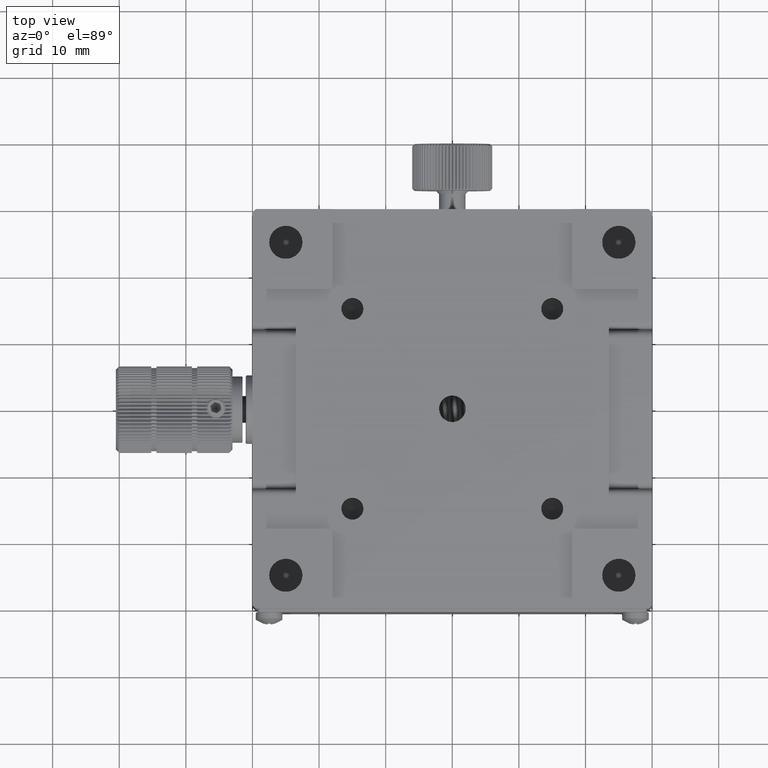
[diagram: clean part render]
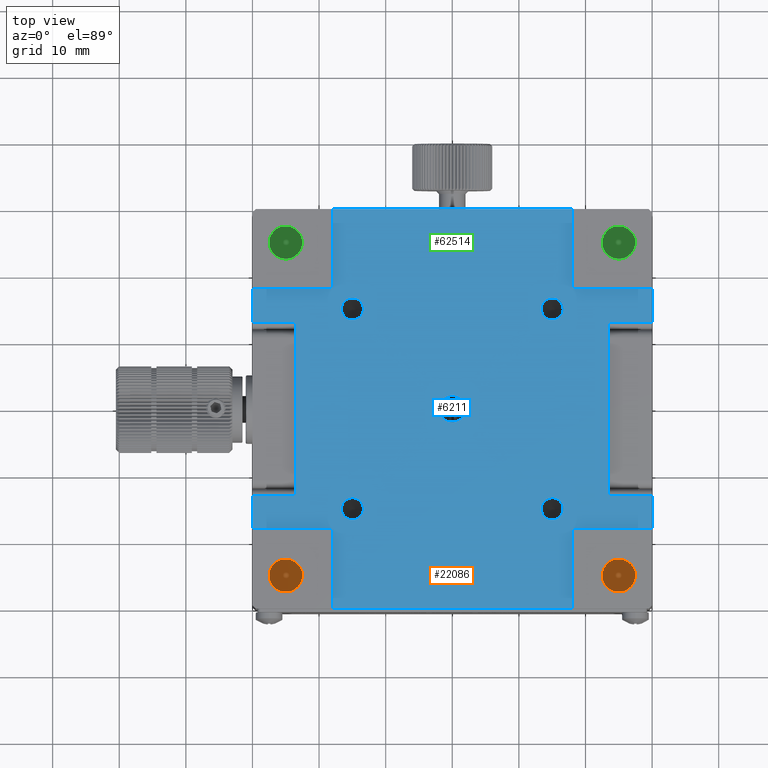
[diagram: same view with three faces highlighted in distinct colors, each labeled with its STEP entity id]
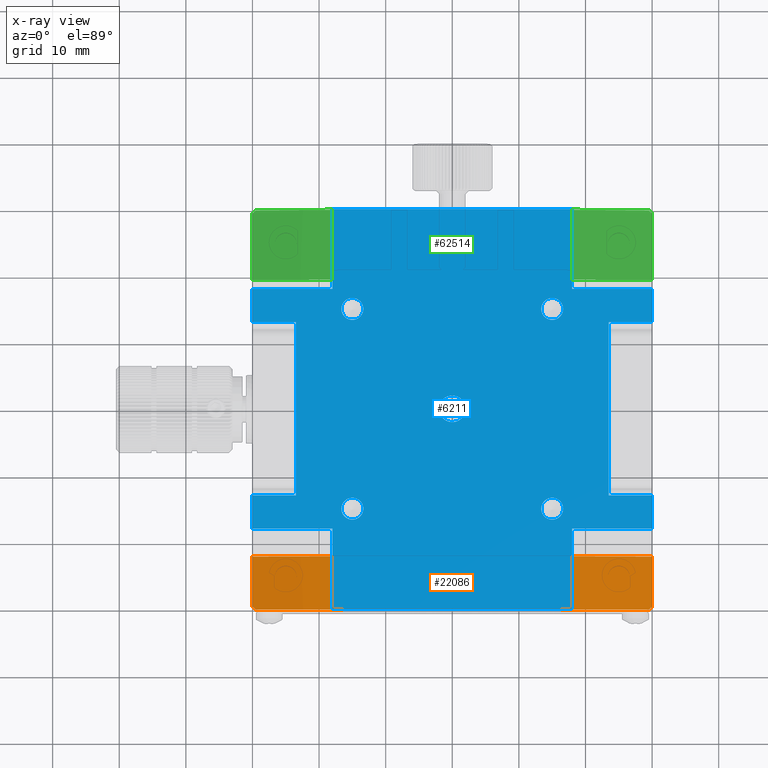
[diagram: x-ray of the same camera — body ghosted, the three highlighted faces saturated]
A machine part, top view with three faces highlighted in distinct colors.
The next image is the same camera in x-ray (body ghosted, the three faces saturated) — at least one of them is partly hidden behind the body in this view.
Their STEP definitions:

[orange] entity #22086 — the highlighted cylindrical surface (partial cylindrical patch) has radius 75 mm, axis along (0, 1, 0).
#2029 = AXIS2_PLACEMENT_3D ( 'NONE', #71826, #43961, #20575 ) ;
#2817 = LINE ( 'NONE', #20597, #67793 ) ;
#4821 = DIRECTION ( 'NONE',  ( 0.000000000000000000, 1.000000000000000000, 0.000000000000000000 ) ) ;
#5381 = CARTESIAN_POINT ( 'NONE',  ( -29.83359522204707304, -29.66640477795295538, 68.81126042875996518 ) ) ;
#7452 = CARTESIAN_POINT ( 'NONE',  ( 29.66692782282690288, -29.83307217717302606, 68.88328069439461387 ) ) ;
#8828 = VERTEX_POINT ( 'NONE', #33727 ) ;
#9821 = CYLINDRICAL_SURFACE ( 'NONE', #28405, 75.00000000484634199 ) ;
#10222 = DIRECTION ( 'NONE',  ( 0.000000000000000000, 1.000000000000000000, 0.000000000000000000 ) ) ;
#11336 = EDGE_CURVE ( 'NONE', #63977, #27926, #53527, .T. ) ;
#14917 = DIRECTION ( 'NONE',  ( -0.000000000000000000, -1.000000000000000000, -0.000000000000000000 ) ) ;
#15840 = ORIENTED_EDGE ( 'NONE', *, *, #33836, .F. ) ;
#15856 = DIRECTION ( 'NONE',  ( 0.000000000000000000, 0.000000000000000000, 1.000000000000000000 ) ) ;
#16231 = CARTESIAN_POINT ( 'NONE',  ( -30.00000000000004974, -21.99999999999997868, 68.73863542962538986 ) ) ;
#18786 = CARTESIAN_POINT ( 'NONE',  ( -30.00000000000004974, -29.49999999999997868, 68.73863542962538986 ) ) ;
#20575 = DIRECTION ( 'NONE',  ( 0.000000000000000000, 0.000000000000000000, 1.000000000000000000 ) ) ;
#20597 = CARTESIAN_POINT ( 'NONE',  ( 29.99999999999995737, -29.99999999999998224, 68.73863542962540407 ) ) ;
#21523 = EDGE_CURVE ( 'NONE', #27926, #32047, #33172, .T. ) ;
#22086 = ADVANCED_FACE ( 'NONE', ( #44179 ), #9821, .T. ) ;
#22840 = CARTESIAN_POINT ( 'NONE',  ( -29.50000000000004619, -29.99999999999997513, 68.95469527687689038 ) ) ;
#27926 = VERTEX_POINT ( 'NONE', #18786 ) ;
#28405 = AXIS2_PLACEMENT_3D ( 'NONE', #55853, #10222, #15856 ) ;
#28594 = CARTESIAN_POINT ( 'NONE',  ( 29.49999999999996092, -29.99999999999997158, 68.95469527687694722 ) ) ;
#32047 = VERTEX_POINT ( 'NONE', #16231 ) ;
#33172 = LINE ( 'NONE', #44114, #35529 ) ;
#33353 = CARTESIAN_POINT ( 'NONE',  ( -29.50000000000004619, -29.99999999999997513, 68.95469527687689038 ) ) ;
#33622 = DIRECTION ( 'NONE',  ( 0.000000000000000000, 0.000000000000000000, 1.000000000000000000 ) ) ;
#33708 = CARTESIAN_POINT ( 'NONE',  ( -30.00000000000004974, -29.49999999999997868, 68.73863542962538986 ) ) ;
#33727 = CARTESIAN_POINT ( 'NONE',  ( 29.99999999999995737, -29.49999999999997513, 68.73863542962540407 ) ) ;
#33836 = EDGE_CURVE ( 'NONE', #51140, #8828, #2817, .T. ) ;
#35529 = VECTOR ( 'NONE', #4821, 1000.000000000000000 ) ;
#35870 = AXIS2_PLACEMENT_3D ( 'NONE', #39300, #68638, #33622 ) ;
#37122 = ORIENTED_EDGE ( 'NONE', *, *, #60890, .T. ) ;
#39300 = CARTESIAN_POINT ( 'NONE',  ( -5.488900341503622181E-30, -21.99999999999997868, 6.938893903907229955E-15 ) ) ;
#39526 = EDGE_CURVE ( 'NONE', #8828, #54422, #64365, .T. ) ;
#43961 = DIRECTION ( 'NONE',  ( 0.000000000000000000, 1.000000000000000000, 0.000000000000000000 ) ) ;
#44114 = CARTESIAN_POINT ( 'NONE',  ( -30.00000000000004974, -29.99999999999998224, 68.73863542962540407 ) ) ;
#44179 = FACE_OUTER_BOUND ( 'NONE', #47975, .T. ) ;
#45409 = CARTESIAN_POINT ( 'NONE',  ( -29.66692782282697749, -29.83307217717305093, 68.88328069439458545 ) ) ;
#47975 = EDGE_LOOP ( 'NONE', ( #64009, #57211, #59925, #49086, #15840, #37122 ) ) ;
#49086 = ORIENTED_EDGE ( 'NONE', *, *, #39526, .F. ) ;
#51140 = VERTEX_POINT ( 'NONE', #72862 ) ;
#52621 = CIRCLE ( 'NONE', #2029, 75.00000000484634199 ) ;
#52743 = CIRCLE ( 'NONE', #35870, 75.00000000484634199 ) ;
#53504 = CARTESIAN_POINT ( 'NONE',  ( 29.49999999999996092, -29.99999999999997158, 68.95469527687694722 ) ) ;
#53527 =( BOUNDED_CURVE ( )  B_SPLINE_CURVE ( 3, ( #33353, #45409, #5381, #33708 ),
 .UNSPECIFIED., .F., .F. ) 
 B_SPLINE_CURVE_WITH_KNOTS ( ( 4, 4 ),
 ( 5.116643342470983846, 5.123905826423976073 ),
 .UNSPECIFIED. ) 
 CURVE ( )  GEOMETRIC_REPRESENTATION_ITEM ( )  RATIONAL_B_SPLINE_CURVE ( ( 1.000000000000000000, 0.9999956046987323877, 0.9999956046987323877, 1.000000000000000000 ) ) 
 REPRESENTATION_ITEM ( '' )  );
#54422 = VERTEX_POINT ( 'NONE', #28594 ) ;
#55853 = CARTESIAN_POINT ( 'NONE',  ( -5.488900341503622181E-30, 30.00000000000002842, 6.938893903907229955E-15 ) ) ;
#57211 = ORIENTED_EDGE ( 'NONE', *, *, #11336, .F. ) ;
#59522 = CARTESIAN_POINT ( 'NONE',  ( 29.99999999999995737, -29.49999999999997513, 68.73863542962540407 ) ) ;
#59925 = ORIENTED_EDGE ( 'NONE', *, *, #70643, .T. ) ;
#60890 = EDGE_CURVE ( 'NONE', #51140, #32047, #52743, .T. ) ;
#63977 = VERTEX_POINT ( 'NONE', #22840 ) ;
#64009 = ORIENTED_EDGE ( 'NONE', *, *, #21523, .F. ) ;
#64365 =( BOUNDED_CURVE ( )  B_SPLINE_CURVE ( 3, ( #59522, #66667, #7452, #53504 ),
 .UNSPECIFIED., .F., .F. ) 
 B_SPLINE_CURVE_WITH_KNOTS ( ( 4, 4 ),
 ( 1.159279480755610159, 1.166541964708602608 ),
 .UNSPECIFIED. ) 
 CURVE ( )  GEOMETRIC_REPRESENTATION_ITEM ( )  RATIONAL_B_SPLINE_CURVE ( ( 1.000000000000000000, 0.9999956046987323877, 0.9999956046987323877, 1.000000000000000000 ) ) 
 REPRESENTATION_ITEM ( '' )  );
#66667 = CARTESIAN_POINT ( 'NONE',  ( 29.83359522204700198, -29.66640477795292696, 68.81126042875999360 ) ) ;
#67793 = VECTOR ( 'NONE', #14917, 1000.000000000000000 ) ;
#68638 = DIRECTION ( 'NONE',  ( -0.000000000000000000, -1.000000000000000000, -0.000000000000000000 ) ) ;
#70643 = EDGE_CURVE ( 'NONE', #63977, #54422, #52621, .T. ) ;
#71826 = CARTESIAN_POINT ( 'NONE',  ( -5.488900341503622181E-30, -29.99999999999997158, 6.938893903907229955E-15 ) ) ;
#72862 = CARTESIAN_POINT ( 'NONE',  ( 29.99999999999995737, -21.99999999999997868, 68.73863542962540407 ) ) ;

[blue] entity #6211 — the highlighted planar face has unit normal (0, 0, 1).
#866 = ORIENTED_EDGE ( 'NONE', *, *, #70541, .T. ) ;
#1095 = EDGE_LOOP ( 'NONE', ( #1145 ) ) ;
#1145 = ORIENTED_EDGE ( 'NONE', *, *, #66589, .T. ) ;
#1581 = VERTEX_POINT ( 'NONE', #64200 ) ;
#1616 = EDGE_LOOP ( 'NONE', ( #27256, #74280, #46910, #68637, #32362, #70071, #7769, #1731, #2458, #55581, #71293, #10503, #42751, #47541, #49913, #866, #54258, #5864, #8316, #52564 ) ) ;
#1641 = CIRCLE ( 'NONE', #67884, 1.999999999999993117 ) ;
#1731 = ORIENTED_EDGE ( 'NONE', *, *, #42708, .T. ) ;
#2458 = ORIENTED_EDGE ( 'NONE', *, *, #58466, .T. ) ;
#2560 = AXIS2_PLACEMENT_3D ( 'NONE', #30005, #31483, #48099 ) ;
#2795 = AXIS2_PLACEMENT_3D ( 'NONE', #13716, #47666, #31059 ) ;
#3611 = DIRECTION ( 'NONE',  ( -0.000000000000000000, -0.000000000000000000, -1.000000000000000000 ) ) ;
#3671 = DIRECTION ( 'NONE',  ( -1.000000000000000000, -0.000000000000000000, 0.000000000000000000 ) ) ;
#3827 = EDGE_CURVE ( 'NONE', #73255, #26808, #51536, .T. ) ;
#4319 = LINE ( 'NONE', #67305, #59095 ) ;
#4731 = ORIENTED_EDGE ( 'NONE', *, *, #14750, .T. ) ;
#5135 = VERTEX_POINT ( 'NONE', #62820 ) ;
#5148 = VECTOR ( 'NONE', #42277, 1000.000000000000000 ) ;
#5864 = ORIENTED_EDGE ( 'NONE', *, *, #7100, .T. ) ;
#6211 = ADVANCED_FACE ( 'NONE', ( #28574, #74497, #22904, #70315, #47737, #65414 ), #52996, .T. ) ;
#6821 = CARTESIAN_POINT ( 'NONE',  ( 3.469446951953614189E-15, 18.00000000000000355, 79.69999999999998863 ) ) ;
#7100 = EDGE_CURVE ( 'NONE', #27781, #73255, #47810, .T. ) ;
#7405 = DIRECTION ( 'NONE',  ( 1.000000000000000000, 0.000000000000000000, -0.000000000000000000 ) ) ;
#7564 = DIRECTION ( 'NONE',  ( -0.000000000000000000, -0.000000000000000000, -1.000000000000000000 ) ) ;
#7769 = ORIENTED_EDGE ( 'NONE', *, *, #53663, .T. ) ;
#7961 = DIRECTION ( 'NONE',  ( -0.000000000000000000, -0.000000000000000000, -1.000000000000000000 ) ) ;
#8316 = ORIENTED_EDGE ( 'NONE', *, *, #3827, .T. ) ;
#8341 = CARTESIAN_POINT ( 'NONE',  ( 3.469446951953614189E-15, 30.00000000000000000, 79.69999999999998863 ) ) ;
#8748 = VECTOR ( 'NONE', #29488, 1000.000000000000000 ) ;
#9318 = CARTESIAN_POINT ( 'NONE',  ( 15.00000000000000711, -15.00000000000000000, 79.69999999999998863 ) ) ;
#9507 = EDGE_LOOP ( 'NONE', ( #67691 ) ) ;
#9615 = CARTESIAN_POINT ( 'NONE',  ( 18.00000000000001066, 0.000000000000000000, 79.69999999999998863 ) ) ;
#10287 = CIRCLE ( 'NONE', #30729, 1.649999999999991696 ) ;
#10498 = VECTOR ( 'NONE', #60509, 1000.000000000000000 ) ;
#10503 = ORIENTED_EDGE ( 'NONE', *, *, #26495, .T. ) ;
#10536 = LINE ( 'NONE', #27163, #66834 ) ;
#11178 = DIRECTION ( 'NONE',  ( 0.000000000000000000, -1.000000000000000000, -0.000000000000000000 ) ) ;
#11726 = LINE ( 'NONE', #46768, #12583 ) ;
#11990 = LINE ( 'NONE', #46679, #45901 ) ;
#12583 = VECTOR ( 'NONE', #45667, 1000.000000000000000 ) ;
#13510 = VECTOR ( 'NONE', #31182, 1000.000000000000000 ) ;
#13716 = CARTESIAN_POINT ( 'NONE',  ( -15.00000000000000000, 15.00000000000000000, 79.69999999999998863 ) ) ;
#13848 = LINE ( 'NONE', #64739, #13510 ) ;
#14066 = CARTESIAN_POINT ( 'NONE',  ( -23.50000000000000000, 0.000000000000000000, 79.69999999999998863 ) ) ;
#14165 = LINE ( 'NONE', #37188, #10498 ) ;
#14750 = EDGE_CURVE ( 'NONE', #5135, #5135, #21783, .T. ) ;
#15232 = EDGE_CURVE ( 'NONE', #22103, #65267, #13848, .T. ) ;
#16038 = DIRECTION ( 'NONE',  ( -0.000000000000000000, 1.000000000000000000, 0.000000000000000000 ) ) ;
#16438 = LINE ( 'NONE', #39456, #22462 ) ;
#17426 = LINE ( 'NONE', #17792, #8748 ) ;
#17792 = CARTESIAN_POINT ( 'NONE',  ( -30.00000000000001421, 0.000000000000000000, 79.69999999999998863 ) ) ;
#18693 = CARTESIAN_POINT ( 'NONE',  ( 18.00000000000001066, 18.00000000000000355, 79.69999999999998863 ) ) ;
#19593 = VECTOR ( 'NONE', #7405, 1000.000000000000000 ) ;
#19706 = AXIS2_PLACEMENT_3D ( 'NONE', #59247, #7564, #30612 ) ;
#20039 = CARTESIAN_POINT ( 'NONE',  ( 18.00000000000001066, 30.00000000000000000, 79.69999999999998863 ) ) ;
#20697 = VERTEX_POINT ( 'NONE', #60373 ) ;
#20934 = EDGE_CURVE ( 'NONE', #20697, #22103, #11726, .T. ) ;
#21557 = EDGE_CURVE ( 'NONE', #30560, #23336, #10536, .T. ) ;
#21783 = CIRCLE ( 'NONE', #53072, 1.649999999999995248 ) ;
#22103 = VERTEX_POINT ( 'NONE', #49820 ) ;
#22286 = CARTESIAN_POINT ( 'NONE',  ( 30.00000000000001066, 18.00000000000000355, 79.69999999999998863 ) ) ;
#22462 = VECTOR ( 'NONE', #50737, 1000.000000000000000 ) ;
#22904 = FACE_BOUND ( 'NONE', #1095, .T. ) ;
#22922 = EDGE_LOOP ( 'NONE', ( #4731 ) ) ;
#23110 = VERTEX_POINT ( 'NONE', #46197 ) ;
#23333 = DIRECTION ( 'NONE',  ( 1.000000000000000000, 0.000000000000000000, -0.000000000000000000 ) ) ;
#23336 = VERTEX_POINT ( 'NONE', #38989 ) ;
#24993 = DIRECTION ( 'NONE',  ( 1.000000000000000000, 0.000000000000000000, 0.000000000000000000 ) ) ;
#25208 = LINE ( 'NONE', #49312, #51477 ) ;
#26495 = EDGE_CURVE ( 'NONE', #54878, #35548, #30611, .T. ) ;
#26808 = VERTEX_POINT ( 'NONE', #57604 ) ;
#27163 = CARTESIAN_POINT ( 'NONE',  ( 18.00000000000001421, 0.000000000000000000, 79.69999999999998863 ) ) ;
#27256 = ORIENTED_EDGE ( 'NONE', *, *, #21557, .T. ) ;
#27781 = VERTEX_POINT ( 'NONE', #45585 ) ;
#28295 = CARTESIAN_POINT ( 'NONE',  ( 23.50000000000001421, 13.00000000000000355, 79.69999999999998863 ) ) ;
#28574 = FACE_OUTER_BOUND ( 'NONE', #1616, .T. ) ;
#29134 = ORIENTED_EDGE ( 'NONE', *, *, #36302, .T. ) ;
#29488 = DIRECTION ( 'NONE',  ( 0.000000000000000000, -1.000000000000000000, -0.000000000000000000 ) ) ;
#30005 = CARTESIAN_POINT ( 'NONE',  ( 3.469446951953614189E-15, 0.000000000000000000, 79.69999999999998863 ) ) ;
#30095 = VECTOR ( 'NONE', #53800, 1000.000000000000000 ) ;
#30560 = VERTEX_POINT ( 'NONE', #34539 ) ;
#30611 = LINE ( 'NONE', #6821, #33168 ) ;
#30612 = DIRECTION ( 'NONE',  ( 1.000000000000000000, 0.000000000000000000, 0.000000000000000000 ) ) ;
#30729 = AXIS2_PLACEMENT_3D ( 'NONE', #9318, #3611, #44754 ) ;
#30784 = DIRECTION ( 'NONE',  ( -0.000000000000000000, -0.000000000000000000, -1.000000000000000000 ) ) ;
#31059 = DIRECTION ( 'NONE',  ( 1.000000000000000000, 0.000000000000000000, 0.000000000000000000 ) ) ;
#31182 = DIRECTION ( 'NONE',  ( -0.000000000000000000, 1.000000000000000000, 0.000000000000000000 ) ) ;
#31184 = VERTEX_POINT ( 'NONE', #46635 ) ;
#31368 = DIRECTION ( 'NONE',  ( -1.000000000000000000, -0.000000000000000000, 0.000000000000000000 ) ) ;
#31483 = DIRECTION ( 'NONE',  ( 0.000000000000000000, 0.000000000000000000, 1.000000000000000000 ) ) ;
#31541 = EDGE_CURVE ( 'NONE', #32855, #20697, #49985, .T. ) ;
#31556 = CARTESIAN_POINT ( 'NONE',  ( 3.469446951953614189E-15, -18.00000000000001421, 79.69999999999998863 ) ) ;
#32256 = VERTEX_POINT ( 'NONE', #55265 ) ;
#32362 = ORIENTED_EDGE ( 'NONE', *, *, #15232, .T. ) ;
#32855 = VERTEX_POINT ( 'NONE', #64624 ) ;
#33168 = VECTOR ( 'NONE', #53610, 1000.000000000000000 ) ;
#33536 = DIRECTION ( 'NONE',  ( -0.000000000000000000, 1.000000000000000000, 0.000000000000000000 ) ) ;
#33654 = LINE ( 'NONE', #57027, #37716 ) ;
#34181 = EDGE_CURVE ( 'NONE', #65792, #65792, #64217, .T. ) ;
#34539 = CARTESIAN_POINT ( 'NONE',  ( 18.00000000000001421, -30.00000000000000000, 79.69999999999998863 ) ) ;
#35548 = VERTEX_POINT ( 'NONE', #67972 ) ;
#35633 = EDGE_CURVE ( 'NONE', #37927, #37927, #52192, .T. ) ;
#36302 = EDGE_CURVE ( 'NONE', #32256, #32256, #1641, .T. ) ;
#36469 = LINE ( 'NONE', #54158, #30095 ) ;
#37091 = DIRECTION ( 'NONE',  ( 0.000000000000000000, -1.000000000000000000, -0.000000000000000000 ) ) ;
#37188 = CARTESIAN_POINT ( 'NONE',  ( 3.469446951953614189E-15, -12.99999999999999467, 79.69999999999998863 ) ) ;
#37716 = VECTOR ( 'NONE', #57394, 1000.000000000000000 ) ;
#37927 = VERTEX_POINT ( 'NONE', #54498 ) ;
#38017 = DIRECTION ( 'NONE',  ( 0.000000000000000000, -1.000000000000000000, -0.000000000000000000 ) ) ;
#38798 = ORIENTED_EDGE ( 'NONE', *, *, #34181, .T. ) ;
#38989 = CARTESIAN_POINT ( 'NONE',  ( 18.00000000000001421, -18.00000000000000355, 79.69999999999998863 ) ) ;
#39456 = CARTESIAN_POINT ( 'NONE',  ( -30.00000000000001421, 0.000000000000000000, 79.69999999999998863 ) ) ;
#39591 = CARTESIAN_POINT ( 'NONE',  ( -18.00000000000000711, -18.00000000000001066, 79.69999999999998863 ) ) ;
#39630 = VERTEX_POINT ( 'NONE', #56855 ) ;
#39999 = EDGE_CURVE ( 'NONE', #35548, #68423, #16438, .T. ) ;
#42277 = DIRECTION ( 'NONE',  ( 1.000000000000000000, 0.000000000000000000, -0.000000000000000000 ) ) ;
#42587 = LINE ( 'NONE', #48995, #45859 ) ;
#42708 = EDGE_CURVE ( 'NONE', #55311, #66809, #42587, .T. ) ;
#42716 = LINE ( 'NONE', #8341, #58757 ) ;
#42751 = ORIENTED_EDGE ( 'NONE', *, *, #39999, .T. ) ;
#43285 = EDGE_CURVE ( 'NONE', #26808, #30560, #11990, .T. ) ;
#44185 = VECTOR ( 'NONE', #11178, 1000.000000000000000 ) ;
#44683 = VECTOR ( 'NONE', #16038, 1000.000000000000000 ) ;
#44695 = LINE ( 'NONE', #9615, #69309 ) ;
#44754 = DIRECTION ( 'NONE',  ( 1.000000000000000000, 0.000000000000000000, 0.000000000000000000 ) ) ;
#45079 = VERTEX_POINT ( 'NONE', #58121 ) ;
#45082 = DIRECTION ( 'NONE',  ( -0.000000000000000000, 1.000000000000000000, 0.000000000000000000 ) ) ;
#45585 = CARTESIAN_POINT ( 'NONE',  ( -30.00000000000001066, -18.00000000000001421, 79.69999999999998863 ) ) ;
#45667 = DIRECTION ( 'NONE',  ( -1.000000000000000000, -0.000000000000000000, 0.000000000000000000 ) ) ;
#45859 = VECTOR ( 'NONE', #3671, 1000.000000000000000 ) ;
#45901 = VECTOR ( 'NONE', #23333, 1000.000000000000000 ) ;
#46197 = CARTESIAN_POINT ( 'NONE',  ( 30.00000000000001421, 13.00000000000000355, 79.69999999999998863 ) ) ;
#46635 = CARTESIAN_POINT ( 'NONE',  ( -23.50000000000000000, 12.99999999999999822, 79.69999999999998863 ) ) ;
#46679 = CARTESIAN_POINT ( 'NONE',  ( 3.469446951953614189E-15, -30.00000000000000000, 79.69999999999998863 ) ) ;
#46768 = CARTESIAN_POINT ( 'NONE',  ( 3.469446951953614189E-15, -13.00000000000000355, 79.69999999999998863 ) ) ;
#46910 = ORIENTED_EDGE ( 'NONE', *, *, #31541, .T. ) ;
#47541 = ORIENTED_EDGE ( 'NONE', *, *, #55147, .T. ) ;
#47637 = LINE ( 'NONE', #14066, #57547 ) ;
#47666 = DIRECTION ( 'NONE',  ( -0.000000000000000000, -0.000000000000000000, -1.000000000000000000 ) ) ;
#47737 = FACE_BOUND ( 'NONE', #56282, .T. ) ;
#47810 = LINE ( 'NONE', #31556, #19593 ) ;
#48099 = DIRECTION ( 'NONE',  ( 1.000000000000000000, 0.000000000000000000, -0.000000000000000000 ) ) ;
#48995 = CARTESIAN_POINT ( 'NONE',  ( 3.469446951953614189E-15, 18.00000000000000355, 79.69999999999998863 ) ) ;
#49312 = CARTESIAN_POINT ( 'NONE',  ( -18.00000000000001421, 0.000000000000000000, 79.69999999999998863 ) ) ;
#49759 = EDGE_CURVE ( 'NONE', #65267, #23110, #36469, .T. ) ;
#49820 = CARTESIAN_POINT ( 'NONE',  ( 23.50000000000001421, -13.00000000000000355, 79.69999999999998863 ) ) ;
#49913 = ORIENTED_EDGE ( 'NONE', *, *, #62703, .T. ) ;
#49985 = LINE ( 'NONE', #67652, #44683 ) ;
#50737 = DIRECTION ( 'NONE',  ( 0.000000000000000000, -1.000000000000000000, -0.000000000000000000 ) ) ;
#50765 = EDGE_CURVE ( 'NONE', #23336, #32855, #4319, .T. ) ;
#51000 = CARTESIAN_POINT ( 'NONE',  ( -18.00000000000001421, 18.00000000000000355, 79.69999999999998863 ) ) ;
#51477 = VECTOR ( 'NONE', #38017, 1000.000000000000000 ) ;
#51536 = LINE ( 'NONE', #64179, #44185 ) ;
#52192 = CIRCLE ( 'NONE', #19706, 1.649999999999995248 ) ;
#52564 = ORIENTED_EDGE ( 'NONE', *, *, #43285, .T. ) ;
#52996 = PLANE ( 'NONE',  #2560 ) ;
#53072 = AXIS2_PLACEMENT_3D ( 'NONE', #70560, #7961, #24993 ) ;
#53583 = CARTESIAN_POINT ( 'NONE',  ( 3.469446951953614189E-15, 12.99999999999999822, 79.69999999999998863 ) ) ;
#53610 = DIRECTION ( 'NONE',  ( -1.000000000000000000, -0.000000000000000000, 0.000000000000000000 ) ) ;
#53663 = EDGE_CURVE ( 'NONE', #23110, #55311, #33654, .T. ) ;
#53800 = DIRECTION ( 'NONE',  ( 1.000000000000000000, 0.000000000000000000, -0.000000000000000000 ) ) ;
#54158 = CARTESIAN_POINT ( 'NONE',  ( 3.469446951953614189E-15, 13.00000000000000355, 79.69999999999998863 ) ) ;
#54258 = ORIENTED_EDGE ( 'NONE', *, *, #54910, .T. ) ;
#54498 = CARTESIAN_POINT ( 'NONE',  ( 16.64999999999999503, 15.00000000000000000, 79.69999999999998863 ) ) ;
#54518 = DIRECTION ( 'NONE',  ( 1.000000000000000000, 0.000000000000000000, -0.000000000000000000 ) ) ;
#54786 = CARTESIAN_POINT ( 'NONE',  ( -30.00000000000001066, -12.99999999999999822, 79.69999999999998863 ) ) ;
#54878 = VERTEX_POINT ( 'NONE', #51000 ) ;
#54910 = EDGE_CURVE ( 'NONE', #74272, #27781, #17426, .T. ) ;
#54913 = DIRECTION ( 'NONE',  ( 1.000000000000000000, 0.000000000000000000, 0.000000000000000000 ) ) ;
#55147 = EDGE_CURVE ( 'NONE', #68423, #31184, #64870, .T. ) ;
#55265 = CARTESIAN_POINT ( 'NONE',  ( 1.999999999999993117, 0.000000000000000000, 79.69999999999998863 ) ) ;
#55311 = VERTEX_POINT ( 'NONE', #22286 ) ;
#55581 = ORIENTED_EDGE ( 'NONE', *, *, #60759, .T. ) ;
#56282 = EDGE_LOOP ( 'NONE', ( #38798 ) ) ;
#56855 = CARTESIAN_POINT ( 'NONE',  ( -23.50000000000000000, -12.99999999999999467, 79.69999999999998863 ) ) ;
#57027 = CARTESIAN_POINT ( 'NONE',  ( 30.00000000000001066, 0.000000000000000000, 79.69999999999998863 ) ) ;
#57394 = DIRECTION ( 'NONE',  ( -0.000000000000000000, 1.000000000000000000, 0.000000000000000000 ) ) ;
#57547 = VECTOR ( 'NONE', #37091, 1000.000000000000000 ) ;
#57604 = CARTESIAN_POINT ( 'NONE',  ( -18.00000000000000711, -30.00000000000000000, 79.69999999999998863 ) ) ;
#57787 = VERTEX_POINT ( 'NONE', #20039 ) ;
#58082 = CARTESIAN_POINT ( 'NONE',  ( -30.00000000000001421, 13.00000000000000178, 79.69999999999998863 ) ) ;
#58121 = CARTESIAN_POINT ( 'NONE',  ( -18.00000000000001421, 30.00000000000000000, 79.69999999999998863 ) ) ;
#58466 = EDGE_CURVE ( 'NONE', #66809, #57787, #44695, .T. ) ;
#58757 = VECTOR ( 'NONE', #31368, 1000.000000000000000 ) ;
#59095 = VECTOR ( 'NONE', #54518, 1000.000000000000000 ) ;
#59247 = CARTESIAN_POINT ( 'NONE',  ( 15.00000000000000000, 15.00000000000000000, 79.69999999999998863 ) ) ;
#59801 = CARTESIAN_POINT ( 'NONE',  ( 0.000000000000000000, 0.000000000000000000, 79.69999999999998863 ) ) ;
#60373 = CARTESIAN_POINT ( 'NONE',  ( 30.00000000000001421, -13.00000000000000355, 79.69999999999998863 ) ) ;
#60509 = DIRECTION ( 'NONE',  ( -1.000000000000000000, -0.000000000000000000, 0.000000000000000000 ) ) ;
#60759 = EDGE_CURVE ( 'NONE', #57787, #45079, #42716, .T. ) ;
#62068 = EDGE_CURVE ( 'NONE', #45079, #54878, #25208, .T. ) ;
#62703 = EDGE_CURVE ( 'NONE', #31184, #39630, #47637, .T. ) ;
#62820 = CARTESIAN_POINT ( 'NONE',  ( -13.35000000000000142, -15.00000000000000888, 79.69999999999998863 ) ) ;
#64179 = CARTESIAN_POINT ( 'NONE',  ( -18.00000000000000711, 0.000000000000000000, 79.69999999999998863 ) ) ;
#64200 = CARTESIAN_POINT ( 'NONE',  ( 16.64999999999999858, -15.00000000000000000, 79.69999999999998863 ) ) ;
#64217 = CIRCLE ( 'NONE', #2795, 1.649999999999995248 ) ;
#64624 = CARTESIAN_POINT ( 'NONE',  ( 30.00000000000001776, -18.00000000000000711, 79.69999999999998863 ) ) ;
#64739 = CARTESIAN_POINT ( 'NONE',  ( 23.50000000000001421, 0.000000000000000000, 79.69999999999998863 ) ) ;
#64870 = LINE ( 'NONE', #53583, #5148 ) ;
#65267 = VERTEX_POINT ( 'NONE', #28295 ) ;
#65414 = FACE_BOUND ( 'NONE', #71798, .T. ) ;
#65792 = VERTEX_POINT ( 'NONE', #72942 ) ;
#66589 = EDGE_CURVE ( 'NONE', #1581, #1581, #10287, .T. ) ;
#66809 = VERTEX_POINT ( 'NONE', #18693 ) ;
#66834 = VECTOR ( 'NONE', #33536, 1000.000000000000000 ) ;
#67305 = CARTESIAN_POINT ( 'NONE',  ( 3.469446951953614189E-15, -18.00000000000000355, 79.69999999999998863 ) ) ;
#67652 = CARTESIAN_POINT ( 'NONE',  ( 30.00000000000001776, 0.000000000000000000, 79.69999999999998863 ) ) ;
#67691 = ORIENTED_EDGE ( 'NONE', *, *, #35633, .T. ) ;
#67884 = AXIS2_PLACEMENT_3D ( 'NONE', #59801, #30784, #54913 ) ;
#67972 = CARTESIAN_POINT ( 'NONE',  ( -30.00000000000001421, 18.00000000000000355, 79.69999999999998863 ) ) ;
#68423 = VERTEX_POINT ( 'NONE', #58082 ) ;
#68637 = ORIENTED_EDGE ( 'NONE', *, *, #20934, .T. ) ;
#69309 = VECTOR ( 'NONE', #45082, 1000.000000000000000 ) ;
#70071 = ORIENTED_EDGE ( 'NONE', *, *, #49759, .T. ) ;
#70315 = FACE_BOUND ( 'NONE', #9507, .T. ) ;
#70541 = EDGE_CURVE ( 'NONE', #39630, #74272, #14165, .T. ) ;
#70560 = CARTESIAN_POINT ( 'NONE',  ( -14.99999999999999645, -15.00000000000000888, 79.69999999999998863 ) ) ;
#71293 = ORIENTED_EDGE ( 'NONE', *, *, #62068, .T. ) ;
#71798 = EDGE_LOOP ( 'NONE', ( #29134 ) ) ;
#72942 = CARTESIAN_POINT ( 'NONE',  ( -13.35000000000000497, 15.00000000000000000, 79.69999999999998863 ) ) ;
#73255 = VERTEX_POINT ( 'NONE', #39591 ) ;
#74272 = VERTEX_POINT ( 'NONE', #54786 ) ;
#74280 = ORIENTED_EDGE ( 'NONE', *, *, #50765, .T. ) ;
#74497 = FACE_BOUND ( 'NONE', #22922, .T. ) ;

[green] entity #62514 — the highlighted cylindrical surface (partial cylindrical patch) has radius 75 mm, axis along (0, 1, 0).
#52 = ORIENTED_EDGE ( 'NONE', *, *, #34486, .T. ) ;
#937 = VERTEX_POINT ( 'NONE', #52352 ) ;
#2903 = CARTESIAN_POINT ( 'NONE',  ( 29.99999999999995737, -29.99999999999998224, 68.73863542962543249 ) ) ;
#4067 = EDGE_CURVE ( 'NONE', #25212, #7464, #9863, .T. ) ;
#5377 = EDGE_CURVE ( 'NONE', #25212, #44018, #29929, .T. ) ;
#6060 = VERTEX_POINT ( 'NONE', #67731 ) ;
#6493 = DIRECTION ( 'NONE',  ( 0.000000000000000000, 0.000000000000000000, 1.000000000000000000 ) ) ;
#7464 = VERTEX_POINT ( 'NONE', #28369 ) ;
#8567 = LINE ( 'NONE', #2903, #56903 ) ;
#9002 = CARTESIAN_POINT ( 'NONE',  ( -29.50000000000005329, 30.00000000000001776, 68.95469527687691880 ) ) ;
#9225 = ORIENTED_EDGE ( 'NONE', *, *, #5377, .T. ) ;
#9863 = LINE ( 'NONE', #32887, #16503 ) ;
#10525 = CARTESIAN_POINT ( 'NONE',  ( -30.00000000000004974, 29.50000000000001776, 68.73863542962540407 ) ) ;
#10735 = DIRECTION ( 'NONE',  ( 0.000000000000000000, 1.000000000000000000, 0.000000000000000000 ) ) ;
#15038 = CARTESIAN_POINT ( 'NONE',  ( -30.00000000000004619, 19.49999999999999645, 68.73863542962540407 ) ) ;
#15283 = CARTESIAN_POINT ( 'NONE',  ( -5.488900341503622181E-30, 30.00000000000002842, 6.938893903907229955E-15 ) ) ;
#15602 = EDGE_LOOP ( 'NONE', ( #24936, #9225, #40362, #34040, #52, #47417 ) ) ;
#16076 = EDGE_CURVE ( 'NONE', #6060, #937, #40116, .T. ) ;
#16180 = CARTESIAN_POINT ( 'NONE',  ( -29.83359522204710501, 29.66640477795297670, 68.81126042875997939 ) ) ;
#16503 = VECTOR ( 'NONE', #62623, 1000.000000000000000 ) ;
#17328 = AXIS2_PLACEMENT_3D ( 'NONE', #40458, #68687, #69430 ) ;
#24936 = ORIENTED_EDGE ( 'NONE', *, *, #4067, .F. ) ;
#25027 = CARTESIAN_POINT ( 'NONE',  ( -5.488900341503622181E-30, 19.49999999999999645, 6.938893903907229955E-15 ) ) ;
#25212 = VERTEX_POINT ( 'NONE', #15038 ) ;
#27632 = EDGE_CURVE ( 'NONE', #37146, #7464, #55512, .T. ) ;
#28369 = CARTESIAN_POINT ( 'NONE',  ( -30.00000000000004974, 29.50000000000001776, 68.73863542962540407 ) ) ;
#29929 = CIRCLE ( 'NONE', #70812, 75.00000000484635621 ) ;
#31596 = DIRECTION ( 'NONE',  ( -0.000000000000000000, -1.000000000000000000, -0.000000000000000000 ) ) ;
#32887 = CARTESIAN_POINT ( 'NONE',  ( -30.00000000000004974, -29.99999999999998224, 68.73863542962540407 ) ) ;
#34040 = ORIENTED_EDGE ( 'NONE', *, *, #16076, .T. ) ;
#34486 = EDGE_CURVE ( 'NONE', #937, #37146, #37802, .T. ) ;
#36304 = CARTESIAN_POINT ( 'NONE',  ( 29.66692782282692775, 29.83307217717304027, 68.88328069439461387 ) ) ;
#37146 = VERTEX_POINT ( 'NONE', #70901 ) ;
#37802 = CIRCLE ( 'NONE', #17328, 75.00000000484635621 ) ;
#39420 = CYLINDRICAL_SURFACE ( 'NONE', #47907, 75.00000000484635621 ) ;
#40116 =( BOUNDED_CURVE ( )  B_SPLINE_CURVE ( 3, ( #69809, #64165, #36304, #59266 ),
 .UNSPECIFIED., .F., .F. ) 
 B_SPLINE_CURVE_WITH_KNOTS ( ( 4, 4 ),
 ( 4.300872134345403275, 4.308134618298395502 ),
 .UNSPECIFIED. ) 
 CURVE ( )  GEOMETRIC_REPRESENTATION_ITEM ( )  RATIONAL_B_SPLINE_CURVE ( ( 1.000000000000000000, 0.9999956046987323877, 0.9999956046987323877, 1.000000000000000000 ) ) 
 REPRESENTATION_ITEM ( '' )  );
#40362 = ORIENTED_EDGE ( 'NONE', *, *, #63425, .F. ) ;
#40458 = CARTESIAN_POINT ( 'NONE',  ( -5.488900341503622181E-30, 30.00000000000001776, 6.938893903907229955E-15 ) ) ;
#43794 = CARTESIAN_POINT ( 'NONE',  ( 29.99999999999995737, 19.49999999999999645, 68.73863542962543249 ) ) ;
#44018 = VERTEX_POINT ( 'NONE', #43794 ) ;
#44330 = FACE_OUTER_BOUND ( 'NONE', #15602, .T. ) ;
#44467 = CARTESIAN_POINT ( 'NONE',  ( -29.66692782282700591, 29.83307217717306870, 68.88328069439458545 ) ) ;
#47417 = ORIENTED_EDGE ( 'NONE', *, *, #27632, .T. ) ;
#47907 = AXIS2_PLACEMENT_3D ( 'NONE', #15283, #10735, #56731 ) ;
#52352 = CARTESIAN_POINT ( 'NONE',  ( 29.49999999999995026, 30.00000000000002132, 68.95469527687696143 ) ) ;
#52544 = DIRECTION ( 'NONE',  ( 0.000000000000000000, 1.000000000000000000, 0.000000000000000000 ) ) ;
#55512 =( BOUNDED_CURVE ( )  B_SPLINE_CURVE ( 3, ( #9002, #44467, #16180, #10525 ),
 .UNSPECIFIED., .F., .T. ) 
 B_SPLINE_CURVE_WITH_KNOTS ( ( 4, 4 ),
 ( 1.975050688881190952, 1.982313172834183179 ),
 .UNSPECIFIED. ) 
 CURVE ( )  GEOMETRIC_REPRESENTATION_ITEM ( )  RATIONAL_B_SPLINE_CURVE ( ( 1.000000000000000000, 0.9999956046987323877, 0.9999956046987323877, 1.000000000000000000 ) ) 
 REPRESENTATION_ITEM ( '' )  );
#56731 = DIRECTION ( 'NONE',  ( 0.000000000000000000, 0.000000000000000000, 1.000000000000000000 ) ) ;
#56903 = VECTOR ( 'NONE', #31596, 1000.000000000000000 ) ;
#59266 = CARTESIAN_POINT ( 'NONE',  ( 29.49999999999995026, 30.00000000000002132, 68.95469527687696143 ) ) ;
#62514 = ADVANCED_FACE ( 'NONE', ( #44330 ), #39420, .T. ) ;
#62623 = DIRECTION ( 'NONE',  ( 0.000000000000000000, 1.000000000000000000, 0.000000000000000000 ) ) ;
#63425 = EDGE_CURVE ( 'NONE', #6060, #44018, #8567, .T. ) ;
#64165 = CARTESIAN_POINT ( 'NONE',  ( 29.83359522204702685, 29.66640477795293762, 68.81126042876000781 ) ) ;
#67731 = CARTESIAN_POINT ( 'NONE',  ( 29.99999999999995737, 29.50000000000000000, 68.73863542962543249 ) ) ;
#68687 = DIRECTION ( 'NONE',  ( -0.000000000000000000, -1.000000000000000000, -0.000000000000000000 ) ) ;
#69430 = DIRECTION ( 'NONE',  ( 0.000000000000000000, 0.000000000000000000, 1.000000000000000000 ) ) ;
#69809 = CARTESIAN_POINT ( 'NONE',  ( 29.99999999999995737, 29.50000000000000000, 68.73863542962543249 ) ) ;
#70812 = AXIS2_PLACEMENT_3D ( 'NONE', #25027, #52544, #6493 ) ;
#70901 = CARTESIAN_POINT ( 'NONE',  ( -29.50000000000005329, 30.00000000000001776, 68.95469527687691880 ) ) ;